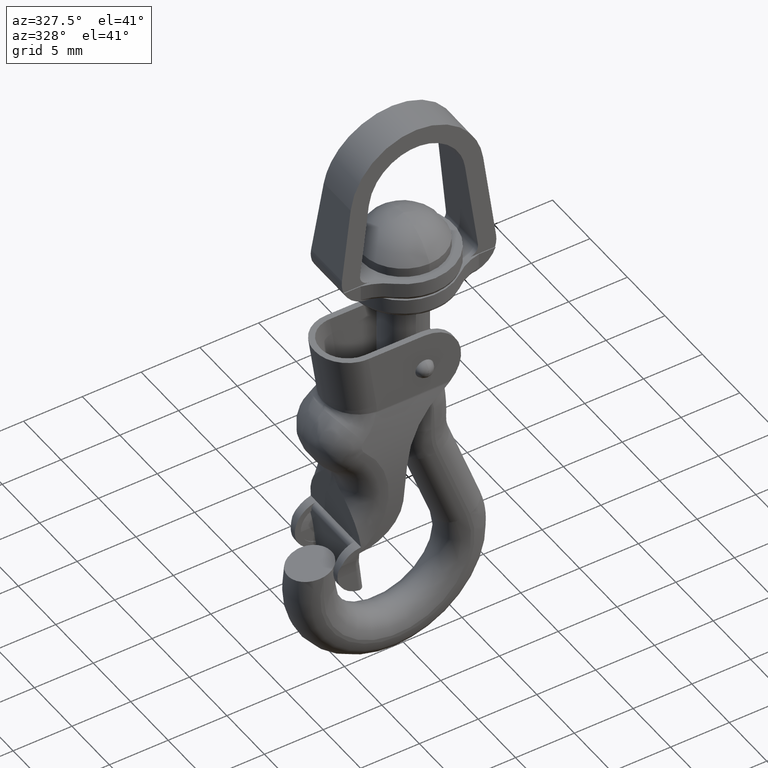
[diagram: clean part render]
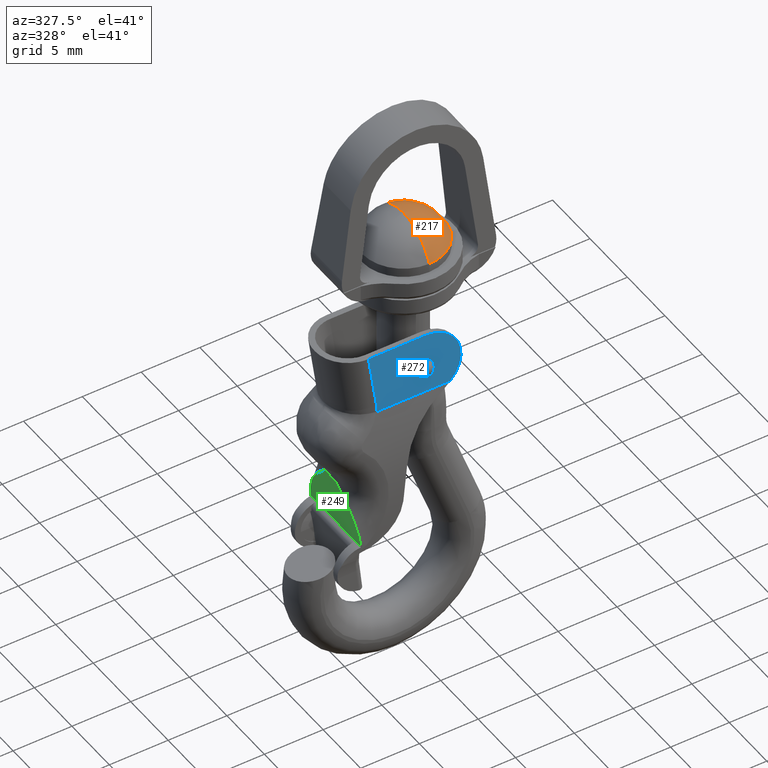
[diagram: same view with three faces highlighted in distinct colors, each labeled with its STEP entity id]
A machine part, auxiliary view with three faces highlighted in distinct colors.
Their STEP definitions:

[orange] entity #217 — the highlighted spherical surface has radius 3.7593 mm.
#217=ADVANCED_FACE('',(#993),#992,.T.);
#992=SPHERICAL_SURFACE('',#2639,3.75925925926E+00);
#993=FACE_OUTER_BOUND('',#2640,.T.);
#2636=CARTESIAN_POINT('',(0.00000000000E+00,3.21964677141E-13,8.98518518518E+00));
#2637=DIRECTION('',(-0.00000000000E+00,-0.00000000000E+00,-1.00000000000E+00));
#2638=DIRECTION('',(1.22460635382E-16,1.00000000000E+00,0.00000000000E+00));
#2639=AXIS2_PLACEMENT_3D('',#2636,#2637,#2638);
#2640=EDGE_LOOP('',(#4127,#4128,#4129));
#4127=ORIENTED_EDGE('',*,*,#4796,.F.);
#4128=ORIENTED_EDGE('',*,*,#4797,.F.);
#4129=ORIENTED_EDGE('',*,*,#4798,.T.);
#4796=EDGE_CURVE('',#6311,#6297,#6324,.T.);
#4797=EDGE_CURVE('',#6330,#6311,#6331,.T.);
#4798=EDGE_CURVE('',#6330,#6297,#6337,.T.);
#6297=VERTEX_POINT('',#8852);
#6311=VERTEX_POINT('',#8861);
#6324=CIRCLE('',#8872,3.47832796500E+00);
#6330=VERTEX_POINT('',#8873);
#6331=(BOUNDED_CURVE() B_SPLINE_CURVE(2,(#8874,#8875,#8876),.UNSPECIFIED.,.F.,.F.) B_SPLINE_CURVE_WITH_KNOTS((3,3),(0.00000000000E+00,1.00000000000E+00),.UNSPECIFIED.) CURVE() GEOMETRIC_REPRESENTATION_ITEM() RATIONAL_B_SPLINE_CURVE((1.00000000000E+00,8.30454798537E-01,1.00000000000E+00)) REPRESENTATION_ITEM('') );
#6337=(BOUNDED_CURVE() B_SPLINE_CURVE(2,(#8877,#8878,#8879),.UNSPECIFIED.,.F.,.F.) B_SPLINE_CURVE_WITH_KNOTS((3,3),(0.00000000000E+00,1.00000000000E+00),.UNSPECIFIED.) CURVE() GEOMETRIC_REPRESENTATION_ITEM() RATIONAL_B_SPLINE_CURVE((7.50000000000E-01,6.22841098903E-01,7.50000000000E-01)) REPRESENTATION_ITEM('') );
#8852=CARTESIAN_POINT('',(-2.85318233093E-11,-3.47832796500E+00,1.04111111111E+01));
#8861=CARTESIAN_POINT('',(2.50360078791E-09,3.47832796500E+00,1.04111111111E+01));
#8869=CARTESIAN_POINT('',(0.00000000000E+00,0.00000000000E+00,1.04111111111E+01));
#8870=DIRECTION('',(-0.00000000000E+00,0.00000000000E+00,-1.00000000000E+00));
#8871=DIRECTION('',(-1.00000000000E+00,-1.22460635382E-16,0.00000000000E+00));
#8872=AXIS2_PLACEMENT_3D('',#8869,#8870,#8871);
#8873=CARTESIAN_POINT('',(2.81889982444E-32,3.22194865382E-13,1.27444444444E+01));
#8874=CARTESIAN_POINT('',(2.81889982444E-32,3.22194865382E-13,1.27444444444E+01));
#8875=CARTESIAN_POINT('',(3.08819733180E-16,2.52178777463E+00,1.27444444444E+01));
#8876=CARTESIAN_POINT('',(4.25958252662E-16,3.47832796500E+00,1.04111111111E+01));
#8877=CARTESIAN_POINT('',(-4.93038065763E-32,3.21734488900E-13,1.27444444444E+01));
#8878=CARTESIAN_POINT('',(-5.34754222183E-16,-2.52178777462E+00,1.27444444444E+01));
#8879=CARTESIAN_POINT('',(-2.96059473233E-16,-3.47832796500E+00,1.04111111111E+01));

[blue] entity #272 — the highlighted planar face has unit normal (0, 1, -0).
#272=ADVANCED_FACE('',(#1547,#1548),#1546,.F.);
#1546=PLANE('',#3251);
#1547=FACE_OUTER_BOUND('',#3252,.T.);
#1548=FACE_BOUND('',#3253,.T.);
#3248=CARTESIAN_POINT('',(-5.60929076784E+00,-2.83888888889E+00,-2.74064107482E+00));
#3249=DIRECTION('',(0.00000000000E+00,1.00000000000E+00,-1.60271657894E-12));
#3250=DIRECTION('',(0.00000000000E+00,1.60271657894E-12,1.00000000000E+00));
#3251=AXIS2_PLACEMENT_3D('',#3248,#3249,#3250);
#3252=EDGE_LOOP('',(#4416,#4417,#4418,#4419,#4420));
#3253=EDGE_LOOP('',(#4421,#4422));
#4416=ORIENTED_EDGE('',*,*,#4988,.T.);
#4417=ORIENTED_EDGE('',*,*,#4828,.T.);
#4418=ORIENTED_EDGE('',*,*,#4983,.F.);
#4419=ORIENTED_EDGE('',*,*,#4927,.T.);
#4420=ORIENTED_EDGE('',*,*,#4989,.T.);
#4421=ORIENTED_EDGE('',*,*,#4990,.T.);
#4422=ORIENTED_EDGE('',*,*,#4991,.T.);
#4828=EDGE_CURVE('',#6520,#6535,#6542,.T.);
#4927=EDGE_CURVE('',#7217,#7210,#7218,.T.);
#4983=EDGE_CURVE('',#7217,#6535,#7577,.T.);
#4988=EDGE_CURVE('',#7609,#6520,#7610,.T.);
#4989=EDGE_CURVE('',#7210,#7609,#7616,.T.);
#4990=EDGE_CURVE('',#7622,#7623,#7624,.T.);
#4991=EDGE_CURVE('',#7623,#7622,#7630,.T.);
#6520=VERTEX_POINT('',#9056);
#6535=VERTEX_POINT('',#9067);
#6542=CIRCLE('',#9093,3.29444444444E+00);
#7210=VERTEX_POINT('',#9742);
#7217=VERTEX_POINT('',#9746);
#7218=CIRCLE('',#9750,3.11111111111E+00);
#7577=LINE('',#10013,#10014);
#7609=VERTEX_POINT('',#10036);
#7610=LINE('',#10037,#10038);
#7616=LINE('',#10040,#10041);
#7622=VERTEX_POINT('',#10043);
#7623=VERTEX_POINT('',#10044);
#7624=CIRCLE('',#10048,7.77777777777E-01);
#7630=CIRCLE('',#10052,7.77777777777E-01);
#9056=CARTESIAN_POINT('',(-4.09328804118E+00,-2.83888888889E+00,-1.52862825652E+00));
#9067=CARTESIAN_POINT('',(-4.06563437526E+00,-2.83888888889E+00,-2.20652991875E+00));
#9090=CARTESIAN_POINT('',(-7.35366990344E+00,-2.83888888889E+00,-2.00114736699E+00));
#9091=DIRECTION('',(0.00000000000E+00,1.00000000000E+00,-1.60271657894E-12));
#9092=DIRECTION('',(-0.00000000000E+00,-1.60271657894E-12,-1.00000000000E+00));
#9093=AXIS2_PLACEMENT_3D('',#9090,#9091,#9092);
#9742=CARTESIAN_POINT('',(-1.38777878078E-14,-2.83888888889E+00,3.11111111111E+00));
#9746=CARTESIAN_POINT('',(2.19107677475E+00,-2.83888888889E+00,-2.20866360337E+00));
#9747=CARTESIAN_POINT('',(-1.42108547152E-14,-2.83888888889E+00,0.00000000000E+00));
#9748=DIRECTION('',(0.00000000000E+00,-1.00000000000E+00,2.35116985405E-13));
#9749=DIRECTION('',(-0.00000000000E+00,-2.35116985405E-13,-1.00000000000E+00));
#9750=AXIS2_PLACEMENT_3D('',#9747,#9748,#9749);
#10013=CARTESIAN_POINT('',(2.19107677475E+00,-2.83888888889E+00,-2.20866360337E+00));
#10014=VECTOR('',#10015,6.25671115001E+00);
#10015=DIRECTION('',(-1.00000000000E+00,0.00000000000E+00,0.00000000000E+00));
#10036=CARTESIAN_POINT('',(-4.76571403649E+00,-2.83888888889E+00,3.11111111111E+00));
#10037=CARTESIAN_POINT('',(-4.76571403649E+00,-2.83888888888E+00,3.11111111111E+00));
#10038=VECTOR('',#10039,4.68821267849E+00);
#10039=DIRECTION('',(1.43429072319E-01,-1.58606919943E-12,-9.89660599000E-01));
#10040=CARTESIAN_POINT('',(-1.42108547152E-14,-2.83888888889E+00,3.11111111111E+00));
#10041=VECTOR('',#10042,4.76571403649E+00);
#10042=DIRECTION('',(-1.00000000000E+00,0.00000000000E+00,0.00000000000E+00));
#10043=CARTESIAN_POINT('',(0.00000000000E+00,-2.83888888889E+00,7.77777777777E-01));
#10044=CARTESIAN_POINT('',(-3.70074341542E-17,-2.83888888889E+00,-7.77777777777E-01));
#10045=CARTESIAN_POINT('',(0.00000000000E+00,-2.83888888889E+00,2.84217094304E-14));
#10046=DIRECTION('',(0.00000000000E+00,1.00000000000E+00,-0.00000000000E+00));
#10047=DIRECTION('',(-1.22460635382E-16,0.00000000000E+00,1.00000000000E+00));
#10048=AXIS2_PLACEMENT_3D('',#10045,#10046,#10047);
#10049=CARTESIAN_POINT('',(0.00000000000E+00,-2.83888888889E+00,2.84217094304E-14));
#10050=DIRECTION('',(0.00000000000E+00,1.00000000000E+00,-0.00000000000E+00));
#10051=DIRECTION('',(-1.22460635382E-16,0.00000000000E+00,1.00000000000E+00));
#10052=AXIS2_PLACEMENT_3D('',#10049,#10050,#10051);

[green] entity #249 — the highlighted planar face has unit normal (0.9939, 0, 0.1104).
#249=ADVANCED_FACE('',(#1316),#1315,.F.);
#1315=PLANE('',#3116);
#1316=FACE_OUTER_BOUND('',#3117,.T.);
#3113=CARTESIAN_POINT('',(-6.28913319179E+00,-4.03059140791E+00,-8.88669016284E+00));
#3114=DIRECTION('',(9.93883734674E-01,-0.00000000000E+00,1.10431526075E-01));
#3115=DIRECTION('',(1.10431526075E-01,0.00000000000E+00,-9.93883734674E-01));
#3116=AXIS2_PLACEMENT_3D('',#3113,#3114,#3115);
#3117=EDGE_LOOP('',(#4307,#4308,#4309,#4310));
#4307=ORIENTED_EDGE('',*,*,#4875,.T.);
#4308=ORIENTED_EDGE('',*,*,#4936,.T.);
#4309=ORIENTED_EDGE('',*,*,#4931,.F.);
#4310=ORIENTED_EDGE('',*,*,#4937,.T.);
#4875=EDGE_CURVE('',#6868,#6861,#6869,.T.);
#4931=EDGE_CURVE('',#7243,#7244,#7245,.T.);
#4936=EDGE_CURVE('',#6861,#7244,#7275,.T.);
#4937=EDGE_CURVE('',#7243,#6868,#7281,.T.);
#6861=VERTEX_POINT('',#9402);
#6868=VERTEX_POINT('',#9413);
#6869=LINE('',#9414,#9415);
#7243=VERTEX_POINT('',#9763);
#7244=VERTEX_POINT('',#9764);
#7245=LINE('',#9765,#9766);
#7275=(BOUNDED_CURVE() B_SPLINE_CURVE(3,(#9794,#9795,#9796,#9797,#9798,#9799,#9800,#9801,#9802,#9803,#9804,#9805),.UNSPECIFIED.,.F.,.F.) B_SPLINE_CURVE_WITH_KNOTS((4,2,2,2,2,4),(0.00000000000E+00,1.36057393069E-03,2.72114786138E-03,4.08172179208E-03,4.76200875742E-03,5.44229572277E-03),.UNSPECIFIED.) CURVE() GEOMETRIC_REPRESENTATION_ITEM() RATIONAL_B_SPLINE_CURVE((1.00000000000E+00,1.00000000000E+00,1.00000000000E+00,1.00000000000E+00,1.00000000000E+00,1.00000000000E+00,1.00000000000E+00,1.00000000000E+00,1.00000000000E+00,1.00000000000E+00,1.00000000000E+00,1.00000000000E+00)) REPRESENTATION_ITEM('') );
#7281=(BOUNDED_CURVE() B_SPLINE_CURVE(3,(#9806,#9807,#9808,#9809,#9810,#9811,#9812,#9813,#9814,#9815,#9816,#9817),.UNSPECIFIED.,.F.,.F.) B_SPLINE_CURVE_WITH_KNOTS((4,2,2,2,2,4),(-5.44229572277E-03,-4.76200875742E-03,-4.08172179208E-03,-2.72114786138E-03,-1.36057393069E-03,-0.00000000000E+00),.UNSPECIFIED.) CURVE() GEOMETRIC_REPRESENTATION_ITEM() RATIONAL_B_SPLINE_CURVE((1.00000000000E+00,1.00000000000E+00,1.00000000000E+00,1.00000000000E+00,1.00000000000E+00,1.00000000000E+00,1.00000000000E+00,1.00000000000E+00,1.00000000000E+00,1.00000000000E+00,1.00000000000E+00,1.00000000000E+00)) REPRESENTATION_ITEM('') );
#9402=CARTESIAN_POINT('',(-5.72719959307E+00,-3.35882617326E+00,-1.39440925512E+01));
#9413=CARTESIAN_POINT('',(-5.72719959307E+00,3.35882617326E+00,-1.39440925512E+01));
#9414=CARTESIAN_POINT('',(-5.72719959307E+00,3.35882617326E+00,-1.39440925512E+01));
#9415=VECTOR('',#9416,6.71765234651E+00);
#9416=DIRECTION('',(0.00000000000E+00,-1.00000000000E+00,0.00000000000E+00));
#9763=CARTESIAN_POINT('',(-6.23804831918E+00,7.59834684752E-01,-9.34645401633E+00));
#9764=CARTESIAN_POINT('',(-6.23804831918E+00,-7.59834684752E-01,-9.34645401633E+00));
#9765=CARTESIAN_POINT('',(-6.23804831918E+00,7.59834684752E-01,-9.34645401633E+00));
#9766=VECTOR('',#9767,1.51966936950E+00);
#9767=DIRECTION('',(0.00000000000E+00,-1.00000000000E+00,0.00000000000E+00));
#9794=CARTESIAN_POINT('',(-5.72719959307E+00,-3.35882617326E+00,-1.39440925512E+01));
#9795=CARTESIAN_POINT('',(-5.77799935306E+00,-3.35669232886E+00,-1.34868947113E+01));
#9796=CARTESIAN_POINT('',(-5.82725487730E+00,-3.27445874725E+00,-1.30435949932E+01));
#9797=CARTESIAN_POINT('',(-5.92336513291E+00,-2.98546210350E+00,-1.21786026928E+01));
#9798=CARTESIAN_POINT('',(-5.96824563464E+00,-2.78396351943E+00,-1.17746781772E+01));
#9799=CARTESIAN_POINT('',(-6.05302893186E+00,-2.30245357450E+00,-1.10116285021E+01));
#9800=CARTESIAN_POINT('',(-6.09308218034E+00,-2.02007717791E+00,-1.06511492659E+01));
#9801=CARTESIAN_POINT('',(-6.14939575296E+00,-1.56658400860E+00,-1.01443271122E+01));
#9802=CARTESIAN_POINT('',(-6.16761591815E+00,-1.41001791113E+00,-9.98034562556E+00));
#9803=CARTESIAN_POINT('',(-6.20330242430E+00,-1.08949597339E+00,-9.65916707022E+00));
#9804=CARTESIAN_POINT('',(-6.22085184595E+00,-9.24674661366E-01,-9.50122227535E+00));
#9805=CARTESIAN_POINT('',(-6.23804831918E+00,-7.59834684752E-01,-9.34645401633E+00));
#9806=CARTESIAN_POINT('',(-6.23804831918E+00,7.59834684752E-01,-9.34645401633E+00));
#9807=CARTESIAN_POINT('',(-6.22085184595E+00,9.24674661369E-01,-9.50122227534E+00));
#9808=CARTESIAN_POINT('',(-6.20330242430E+00,1.08949597339E+00,-9.65916707022E+00));
#9809=CARTESIAN_POINT('',(-6.16761591815E+00,1.41001791113E+00,-9.98034562556E+00));
#9810=CARTESIAN_POINT('',(-6.14939575296E+00,1.56658400860E+00,-1.01443271122E+01));
#9811=CARTESIAN_POINT('',(-6.09308218034E+00,2.02007717791E+00,-1.06511492659E+01));
#9812=CARTESIAN_POINT('',(-6.05302893186E+00,2.30245357450E+00,-1.10116285021E+01));
#9813=CARTESIAN_POINT('',(-5.96824563464E+00,2.78396351943E+00,-1.17746781772E+01));
#9814=CARTESIAN_POINT('',(-5.92336513291E+00,2.98546210350E+00,-1.21786026928E+01));
#9815=CARTESIAN_POINT('',(-5.82725487730E+00,3.27445874725E+00,-1.30435949932E+01));
#9816=CARTESIAN_POINT('',(-5.77799935306E+00,3.35669232886E+00,-1.34868947113E+01));
#9817=CARTESIAN_POINT('',(-5.72719959307E+00,3.35882617326E+00,-1.39440925512E+01));